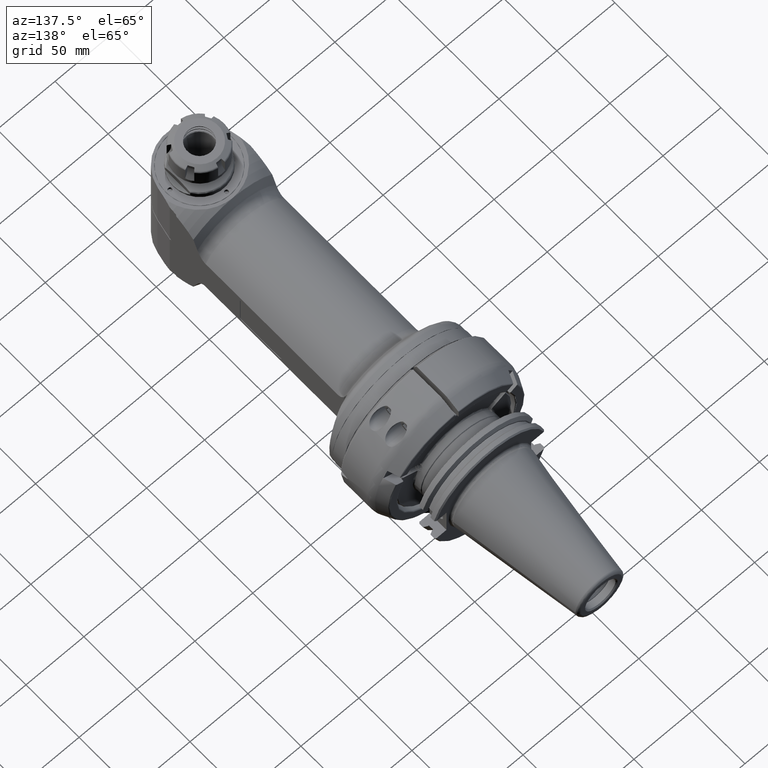
[diagram: clean part render]
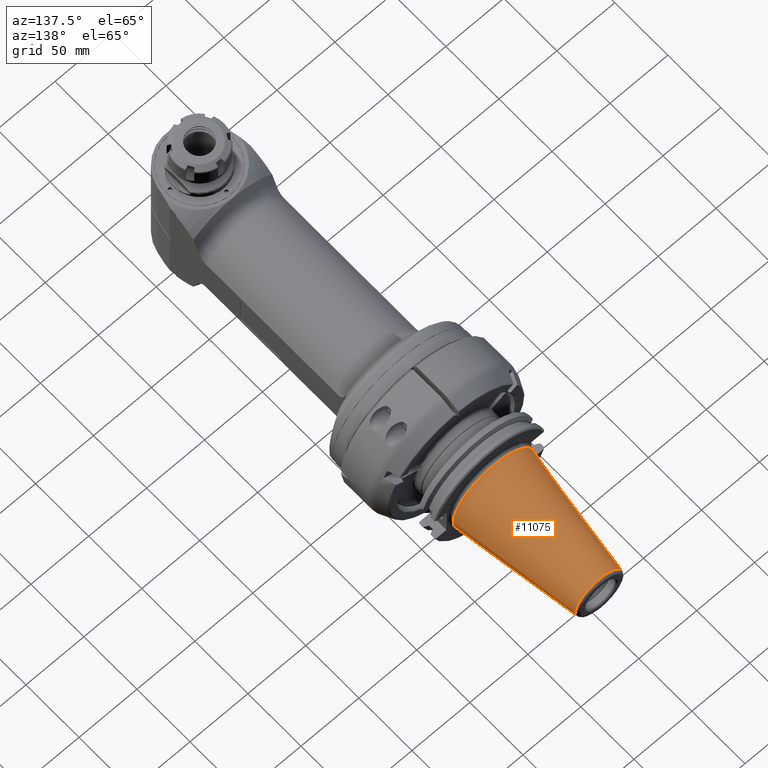
[diagram: same view with one face highlighted and labeled with its STEP entity id]
A machine part, auxiliary view. The second image highlights one B-rep face of the part: STEP entity #11075.
In plain terms, the highlighted conical surface has half-angle 8.297 deg.
Its self-contained STEP definition (entity closure, byte-faithful):
#993=CONICAL_SURFACE('',#12188,27.67265681028,0.144812411498922);
#1452=FACE_OUTER_BOUND('',#2188,.T.);
#2188=EDGE_LOOP('',(#9167,#9168,#9169,#9170,#9171,#9172));
#2861=LINE('',#19289,#3536);
#3536=VECTOR('',#14642,27.67265681028);
#4181=CIRCLE('',#12186,34.925);
#4182=CIRCLE('',#12187,34.925);
#4183=CIRCLE('',#12189,20.42031362057);
#4184=CIRCLE('',#12190,20.42031362057);
#5080=VERTEX_POINT('',#19282);
#5081=VERTEX_POINT('',#19283);
#5082=VERTEX_POINT('',#19288);
#5083=VERTEX_POINT('',#19290);
#6515=EDGE_CURVE('',#5080,#5081,#4181,.T.);
#6517=EDGE_CURVE('',#5081,#5080,#4182,.T.);
#6518=EDGE_CURVE('',#5080,#5082,#2861,.T.);
#6519=EDGE_CURVE('',#5083,#5082,#4183,.T.);
#6520=EDGE_CURVE('',#5082,#5083,#4184,.T.);
#9167=ORIENTED_EDGE('',*,*,#6515,.F.);
#9168=ORIENTED_EDGE('',*,*,#6518,.T.);
#9169=ORIENTED_EDGE('',*,*,#6519,.F.);
#9170=ORIENTED_EDGE('',*,*,#6520,.F.);
#9171=ORIENTED_EDGE('',*,*,#6518,.F.);
#9172=ORIENTED_EDGE('',*,*,#6517,.F.);
#11075=ADVANCED_FACE('',(#1452),#993,.T.);
#12186=AXIS2_PLACEMENT_3D('',#19284,#14635,#14636);
#12187=AXIS2_PLACEMENT_3D('',#19286,#14638,#14639);
#12188=AXIS2_PLACEMENT_3D('',#19287,#14640,#14641);
#12189=AXIS2_PLACEMENT_3D('',#19291,#14643,#14644);
#12190=AXIS2_PLACEMENT_3D('',#19292,#14645,#14646);
#14635=DIRECTION('center_axis',(0.,-1.,0.));
#14636=DIRECTION('ref_axis',(-1.,0.,0.));
#14638=DIRECTION('center_axis',(0.,-1.,0.));
#14639=DIRECTION('ref_axis',(-1.,0.,0.));
#14640=DIRECTION('center_axis',(0.,-1.,0.));
#14641=DIRECTION('ref_axis',(-1.,0.,0.));
#14642=DIRECTION('',(-0.144306807239621,0.98953299358046,-1.76724869581176E-17));
#14643=DIRECTION('center_axis',(0.,1.,0.));
#14644=DIRECTION('ref_axis',(-1.,0.,0.));
#14645=DIRECTION('center_axis',(0.,1.,0.));
#14646=DIRECTION('ref_axis',(-1.,0.,0.));
#19282=CARTESIAN_POINT('',(34.925,76.9999997692299,0.));
#19283=CARTESIAN_POINT('',(-34.9250000000012,76.9999997692296,4.27707894602227E-15));
#19284=CARTESIAN_POINT('Origin',(0.,76.9999997692299,0.));
#19286=CARTESIAN_POINT('Origin',(0.,76.9999997692299,0.));
#19287=CARTESIAN_POINT('Origin',(0.,126.73038327828,0.));
#19288=CARTESIAN_POINT('',(20.4203136205638,176.460766787329,2.50076717130085E-15));
#19289=CARTESIAN_POINT('',(27.67265681028,126.73038327828,3.38892305866126E-15));
#19290=CARTESIAN_POINT('',(2.50076717130162E-15,176.46076678733,-20.42031362057));
#19291=CARTESIAN_POINT('Origin',(0.,176.46076678733,0.));
#19292=CARTESIAN_POINT('Origin',(0.,176.46076678733,0.));